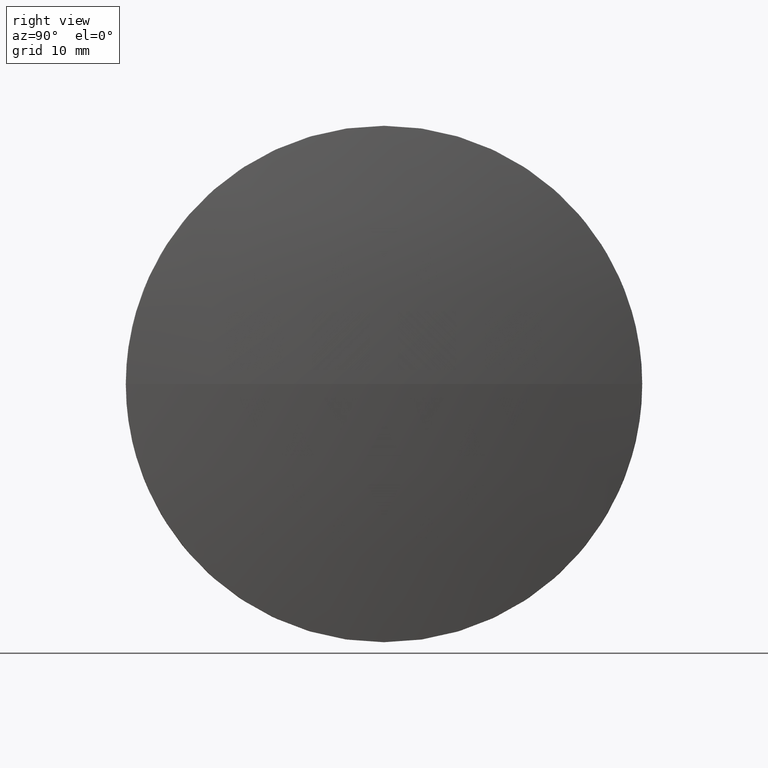
[diagram: clean part render]
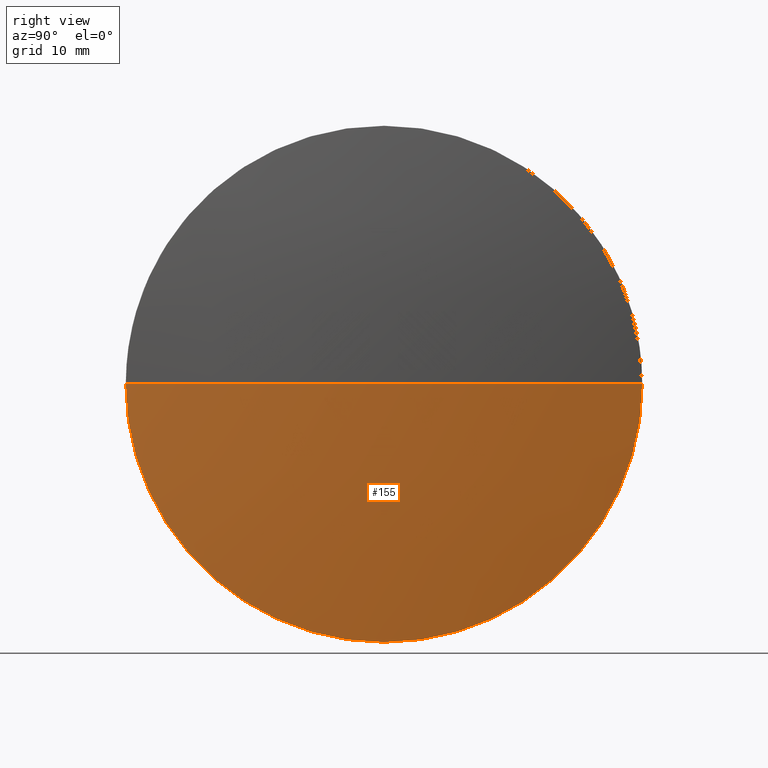
[diagram: same view with one face highlighted and labeled with its STEP entity id]
A machine part, right view. The second image highlights one B-rep face of the part: STEP entity #155.
In plain terms, the highlighted spherical surface has radius 257.97 mm.
Its self-contained STEP definition (entity closure, byte-faithful):
#4 = DIRECTION ( 'NONE',  ( 1.000000000000000000, 0.0000000000000000000, 0.0000000000000000000 ) ) ;
#6 = DIRECTION ( 'NONE',  ( -0.0000000000000000000, 0.0000000000000000000, 1.000000000000000000 ) ) ;
#10 = AXIS2_PLACEMENT_3D ( 'NONE', #177, #130, #165 ) ;
#21 = DIRECTION ( 'NONE',  ( 0.0000000000000000000, 1.000000000000000000, 0.0000000000000000000 ) ) ;
#24 = CIRCLE ( 'NONE', #121, 40.00000000000000700 ) ;
#28 = EDGE_CURVE ( 'NONE', #142, #148, #75, .T. ) ;
#30 = DIRECTION ( 'NONE',  ( -1.000000000000000000, -0.0000000000000000000, -0.0000000000000000000 ) ) ;
#34 = DIRECTION ( 'NONE',  ( -0.0000000000000000000, 0.0000000000000000000, -1.000000000000000000 ) ) ;
#37 = EDGE_CURVE ( 'NONE', #170, #148, #73, .T. ) ;
#39 = EDGE_CURVE ( 'NONE', #142, #78, #140, .T. ) ;
#49 = AXIS2_PLACEMENT_3D ( 'NONE', #57, #6, #4 ) ;
#55 = EDGE_LOOP ( 'NONE', ( #172, #125, #59, #85 ) ) ;
#57 = CARTESIAN_POINT ( 'NONE',  ( -25.90116218623498400, 130.4671098528244200, 0.0000000000000000000 ) ) ;
#59 = ORIENTED_EDGE ( 'NONE', *, *, #37, .F. ) ;
#60 = SPHERICAL_SURFACE ( 'NONE', #145, 257.9702564102559000 ) ;
#69 = EDGE_CURVE ( 'NONE', #78, #170, #24, .T. ) ;
#73 = CIRCLE ( 'NONE', #113, 40.00000000000000700 ) ;
#75 = CIRCLE ( 'NONE', #10, 257.9702564102559600 ) ;
#78 = VERTEX_POINT ( 'NONE', #92 ) ;
#81 = CARTESIAN_POINT ( 'NONE',  ( 232.0690942240209200, 130.4671098528244500, 0.0000000000000000000 ) ) ;
#83 = CARTESIAN_POINT ( 'NONE',  ( 228.9490942240209100, 130.4671098528244200, -40.00000000000000700 ) ) ;
#85 = ORIENTED_EDGE ( 'NONE', *, *, #69, .F. ) ;
#92 = CARTESIAN_POINT ( 'NONE',  ( 228.9490942240209100, 170.4671098528244500, 0.0000000000000000000 ) ) ;
#93 = DIRECTION ( 'NONE',  ( -1.000000000000000000, -0.0000000000000000000, -0.0000000000000000000 ) ) ;
#97 = CARTESIAN_POINT ( 'NONE',  ( 228.9490942240209100, 90.46710985282437900, -4.898587196589416200E-015 ) ) ;
#113 = AXIS2_PLACEMENT_3D ( 'NONE', #146, #30, #117 ) ;
#117 = DIRECTION ( 'NONE',  ( 0.0000000000000000000, 0.0000000000000000000, 1.000000000000000000 ) ) ;
#118 = CARTESIAN_POINT ( 'NONE',  ( 228.9490942240209100, 130.4671098528244200, 0.0000000000000000000 ) ) ;
#121 = AXIS2_PLACEMENT_3D ( 'NONE', #118, #93, #184 ) ;
#125 = ORIENTED_EDGE ( 'NONE', *, *, #28, .T. ) ;
#130 = DIRECTION ( 'NONE',  ( 0.0000000000000000000, 1.224646799147353200E-016, -1.000000000000000000 ) ) ;
#135 = CARTESIAN_POINT ( 'NONE',  ( -25.90116218623498400, 130.4671098528244200, 0.0000000000000000000 ) ) ;
#140 = CIRCLE ( 'NONE', #49, 257.9702564102559000 ) ;
#142 = VERTEX_POINT ( 'NONE', #81 ) ;
#144 = FACE_OUTER_BOUND ( 'NONE', #55, .T. ) ;
#145 = AXIS2_PLACEMENT_3D ( 'NONE', #135, #34, #21 ) ;
#146 = CARTESIAN_POINT ( 'NONE',  ( 228.9490942240209100, 130.4671098528244200, 0.0000000000000000000 ) ) ;
#148 = VERTEX_POINT ( 'NONE', #97 ) ;
#155 = ADVANCED_FACE ( 'NONE', ( #144 ), #60, .T. ) ;
#165 = DIRECTION ( 'NONE',  ( 0.0000000000000000000, 1.000000000000000000, 1.224646799147353000E-016 ) ) ;
#170 = VERTEX_POINT ( 'NONE', #83 ) ;
#172 = ORIENTED_EDGE ( 'NONE', *, *, #39, .F. ) ;
#177 = CARTESIAN_POINT ( 'NONE',  ( -25.90116218623498400, 130.4671098528244200, 0.0000000000000000000 ) ) ;
#184 = DIRECTION ( 'NONE',  ( 0.0000000000000000000, 0.0000000000000000000, 1.000000000000000000 ) ) ;